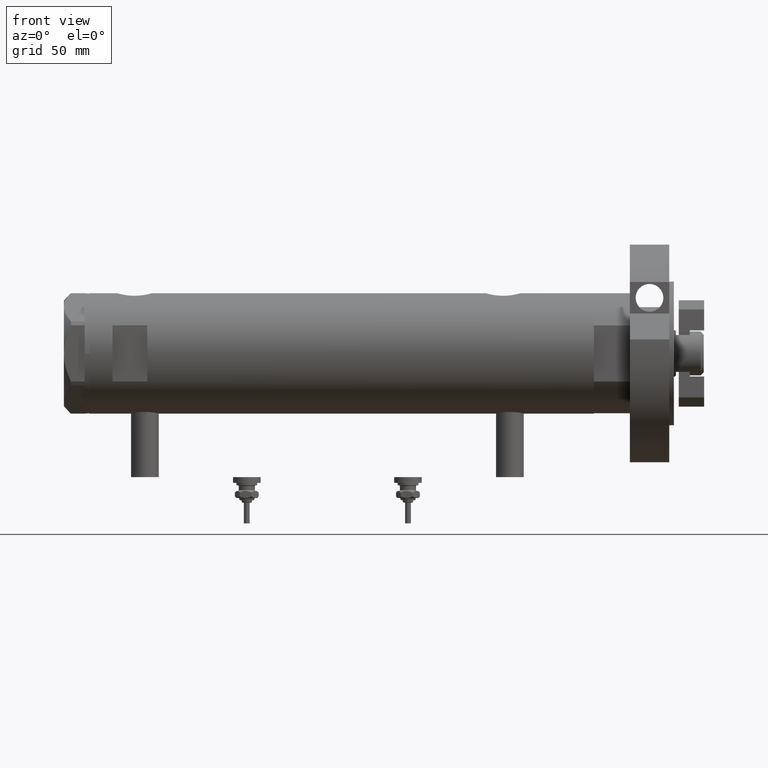
[diagram: clean part render]
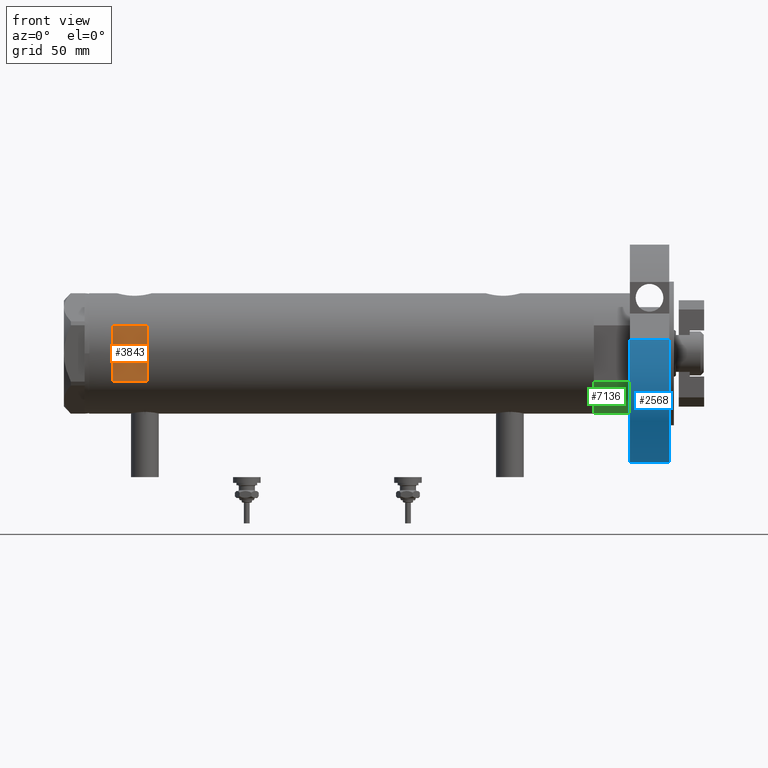
[diagram: same view with three faces highlighted in distinct colors, each labeled with its STEP entity id]
A machine part, front view with three faces highlighted in distinct colors.
Their STEP definitions:

[orange] entity #3843 — the highlighted planar face has unit normal (-0, 1, 0).
#249 = VERTEX_POINT ( 'NONE', #1616 ) ;
#256 = CARTESIAN_POINT ( 'NONE',  ( -26.00000000000000355, -23.00000000000000355, 98.95000000000001705 ) ) ;
#266 = ORIENTED_EDGE ( 'NONE', *, *, #1480, .T. ) ;
#517 = EDGE_LOOP ( 'NONE', ( #2859, #4172, #266, #6302 ) ) ;
#722 = AXIS2_PLACEMENT_3D ( 'NONE', #256, #5692, #1670 ) ;
#891 = VERTEX_POINT ( 'NONE', #8006 ) ;
#1367 = DIRECTION ( 'NONE',  ( 0.000000000000000000, 0.000000000000000000, 1.000000000000000000 ) ) ;
#1480 = EDGE_CURVE ( 'NONE', #891, #249, #7370, .T. ) ;
#1562 = EDGE_CURVE ( 'NONE', #1565, #249, #3850, .T. ) ;
#1565 = VERTEX_POINT ( 'NONE', #5816 ) ;
#1616 = CARTESIAN_POINT ( 'NONE',  ( 12.12435565298214080, -23.00000000000000355, 98.95000000000001705 ) ) ;
#1627 = FACE_OUTER_BOUND ( 'NONE', #517, .T. ) ;
#1670 = DIRECTION ( 'NONE',  ( 0.000000000000000000, -0.000000000000000000, 1.000000000000000000 ) ) ;
#1681 = VECTOR ( 'NONE', #6426, 1000.000000000000000 ) ;
#1753 = CARTESIAN_POINT ( 'NONE',  ( -26.00000000000000355, -23.00000000000000355, 98.95000000000001705 ) ) ;
#1825 = VECTOR ( 'NONE', #1367, 1000.000000000000000 ) ;
#2263 = VECTOR ( 'NONE', #3401, 1000.000000000000000 ) ;
#2277 = PLANE ( 'NONE',  #722 ) ;
#2859 = ORIENTED_EDGE ( 'NONE', *, *, #4123, .T. ) ;
#3401 = DIRECTION ( 'NONE',  ( -0.000000000000000000, -0.000000000000000000, -1.000000000000000000 ) ) ;
#3843 = ADVANCED_FACE ( 'NONE', ( #1627 ), #2277, .F. ) ;
#3850 = LINE ( 'NONE', #1753, #1681 ) ;
#4123 = EDGE_CURVE ( 'NONE', #1565, #5991, #6645, .T. ) ;
#4172 = ORIENTED_EDGE ( 'NONE', *, *, #7360, .T. ) ;
#4452 = CARTESIAN_POINT ( 'NONE',  ( -12.12435565298214080, -23.00000000000000355, 83.95000000000001705 ) ) ;
#4579 = LINE ( 'NONE', #5805, #8327 ) ;
#5692 = DIRECTION ( 'NONE',  ( 0.000000000000000000, 1.000000000000000000, 0.000000000000000000 ) ) ;
#5805 = CARTESIAN_POINT ( 'NONE',  ( -26.00000000000000355, -23.00000000000000355, 83.95000000000003126 ) ) ;
#5816 = CARTESIAN_POINT ( 'NONE',  ( -12.12435565298214080, -23.00000000000000355, 98.95000000000001705 ) ) ;
#5991 = VERTEX_POINT ( 'NONE', #4452 ) ;
#6302 = ORIENTED_EDGE ( 'NONE', *, *, #1562, .F. ) ;
#6426 = DIRECTION ( 'NONE',  ( 1.000000000000000000, -0.000000000000000000, -0.000000000000000000 ) ) ;
#6645 = LINE ( 'NONE', #8028, #2263 ) ;
#7213 = DIRECTION ( 'NONE',  ( 1.000000000000000000, -0.000000000000000000, -0.000000000000000000 ) ) ;
#7360 = EDGE_CURVE ( 'NONE', #5991, #891, #4579, .T. ) ;
#7370 = LINE ( 'NONE', #8338, #1825 ) ;
#8006 = CARTESIAN_POINT ( 'NONE',  ( 12.12435565298214080, -23.00000000000000355, 83.95000000000001705 ) ) ;
#8028 = CARTESIAN_POINT ( 'NONE',  ( -12.12435565298214080, -23.00000000000000355, -108.9500000000000028 ) ) ;
#8327 = VECTOR ( 'NONE', #7213, 1000.000000000000000 ) ;
#8338 = CARTESIAN_POINT ( 'NONE',  ( 12.12435565298214080, -23.00000000000000355, -108.9500000000000028 ) ) ;

[blue] entity #2568 — the highlighted cylindrical surface (partial cylindrical patch) has radius 47 mm, axis along (-1, -0, 0).
#446 = CIRCLE ( 'NONE', #8021, 46.99999999999999289 ) ;
#587 = DIRECTION ( 'NONE',  ( -0.000000000000000000, -0.000000000000000000, -1.000000000000000000 ) ) ;
#593 = CIRCLE ( 'NONE', #6882, 46.99999999999999289 ) ;
#657 = EDGE_CURVE ( 'NONE', #2670, #7834, #8198, .T. ) ;
#927 = CARTESIAN_POINT ( 'NONE',  ( -46.99999999999999289, 0.000000000000000000, 0.000000000000000000 ) ) ;
#1290 = LINE ( 'NONE', #1336, #5878 ) ;
#1336 = CARTESIAN_POINT ( 'NONE',  ( -46.99999999999999289, 0.000000000000000000, 17.00000000000000000 ) ) ;
#1545 = AXIS2_PLACEMENT_3D ( 'NONE', #6621, #587, #7287 ) ;
#1911 = FACE_OUTER_BOUND ( 'NONE', #8467, .T. ) ;
#2121 = DIRECTION ( 'NONE',  ( -0.000000000000000000, -0.000000000000000000, 1.000000000000000000 ) ) ;
#2220 = EDGE_CURVE ( 'NONE', #6772, #6833, #1290, .T. ) ;
#2568 = ADVANCED_FACE ( 'NONE', ( #1911 ), #2597, .T. ) ;
#2583 = DIRECTION ( 'NONE',  ( 0.000000000000000000, 0.000000000000000000, 1.000000000000000000 ) ) ;
#2597 = CYLINDRICAL_SURFACE ( 'NONE', #1545, 46.99999999999999289 ) ;
#2661 = DIRECTION ( 'NONE',  ( 0.000000000000000000, 0.000000000000000000, 1.000000000000000000 ) ) ;
#2668 = ORIENTED_EDGE ( 'NONE', *, *, #4049, .F. ) ;
#2670 = VERTEX_POINT ( 'NONE', #6498 ) ;
#3126 = ORIENTED_EDGE ( 'NONE', *, *, #4148, .T. ) ;
#3321 = CARTESIAN_POINT ( 'NONE',  ( 0.000000000000000000, 0.000000000000000000, 0.000000000000000000 ) ) ;
#3390 = CARTESIAN_POINT ( 'NONE',  ( 6.092310621118299352, 46.60347359688769586, 0.000000000000000000 ) ) ;
#4049 = EDGE_CURVE ( 'NONE', #7834, #6772, #593, .T. ) ;
#4148 = EDGE_CURVE ( 'NONE', #2670, #6833, #446, .T. ) ;
#4676 = DIRECTION ( 'NONE',  ( 1.000000000000000000, 0.000000000000000000, 0.000000000000000000 ) ) ;
#5597 = CARTESIAN_POINT ( 'NONE',  ( -46.99999999999999289, 0.000000000000000000, 17.00000000000000000 ) ) ;
#5878 = VECTOR ( 'NONE', #7339, 1000.000000000000000 ) ;
#6491 = CARTESIAN_POINT ( 'NONE',  ( 6.092310621118299352, 46.60347359688769586, 17.00000000000000000 ) ) ;
#6498 = CARTESIAN_POINT ( 'NONE',  ( 6.092310621118299352, 46.60347359688769586, 0.000000000000000000 ) ) ;
#6621 = CARTESIAN_POINT ( 'NONE',  ( 0.000000000000000000, 0.000000000000000000, 17.00000000000000000 ) ) ;
#6772 = VERTEX_POINT ( 'NONE', #5597 ) ;
#6784 = ORIENTED_EDGE ( 'NONE', *, *, #2220, .F. ) ;
#6833 = VERTEX_POINT ( 'NONE', #927 ) ;
#6882 = AXIS2_PLACEMENT_3D ( 'NONE', #8559, #2583, #7771 ) ;
#6972 = ORIENTED_EDGE ( 'NONE', *, *, #657, .F. ) ;
#7287 = DIRECTION ( 'NONE',  ( -1.000000000000000000, 0.000000000000000000, 0.000000000000000000 ) ) ;
#7339 = DIRECTION ( 'NONE',  ( -0.000000000000000000, -0.000000000000000000, -1.000000000000000000 ) ) ;
#7771 = DIRECTION ( 'NONE',  ( 1.000000000000000000, 0.000000000000000000, 0.000000000000000000 ) ) ;
#7834 = VERTEX_POINT ( 'NONE', #6491 ) ;
#8021 = AXIS2_PLACEMENT_3D ( 'NONE', #3321, #2661, #4676 ) ;
#8091 = VECTOR ( 'NONE', #2121, 1000.000000000000000 ) ;
#8198 = LINE ( 'NONE', #3390, #8091 ) ;
#8467 = EDGE_LOOP ( 'NONE', ( #6784, #2668, #6972, #3126 ) ) ;
#8559 = CARTESIAN_POINT ( 'NONE',  ( 0.000000000000000000, 0.000000000000000000, 17.00000000000000000 ) ) ;

[green] entity #7136 — the highlighted cylindrical surface (partial cylindrical patch) has radius 26 mm, axis along (-1, -0, 0).
#99 = DIRECTION ( 'NONE',  ( -1.000000000000000000, 0.000000000000000000, 0.000000000000000000 ) ) ;
#602 = VECTOR ( 'NONE', #4128, 1000.000000000000000 ) ;
#639 = CARTESIAN_POINT ( 'NONE',  ( 0.000000000000000000, 0.000000000000000000, 15.50000000000000000 ) ) ;
#696 = CARTESIAN_POINT ( 'NONE',  ( 0.000000000000000000, 0.000000000000000000, 15.50000000000000000 ) ) ;
#772 = DIRECTION ( 'NONE',  ( 0.000000000000000000, 0.000000000000000000, 1.000000000000000000 ) ) ;
#854 = LINE ( 'NONE', #4868, #602 ) ;
#1044 = AXIS2_PLACEMENT_3D ( 'NONE', #696, #3312, #99 ) ;
#1321 = VERTEX_POINT ( 'NONE', #1909 ) ;
#1515 = ORIENTED_EDGE ( 'NONE', *, *, #2291, .F. ) ;
#1868 = VECTOR ( 'NONE', #8657, 1000.000000000000000 ) ;
#1877 = DIRECTION ( 'NONE',  ( 0.000000000000000000, 0.000000000000000000, 1.000000000000000000 ) ) ;
#1909 = CARTESIAN_POINT ( 'NONE',  ( 12.12435565298215323, -22.99999999999999645, 0.000000000000000000 ) ) ;
#2024 = ORIENTED_EDGE ( 'NONE', *, *, #4837, .T. ) ;
#2291 = EDGE_CURVE ( 'NONE', #3260, #5117, #5171, .T. ) ;
#2430 = CIRCLE ( 'NONE', #7338, 26.00000000000000355 ) ;
#3033 = CARTESIAN_POINT ( 'NONE',  ( 12.12435565298215323, -22.99999999999999645, 15.50000000000000000 ) ) ;
#3252 = LINE ( 'NONE', #5837, #1868 ) ;
#3259 = EDGE_LOOP ( 'NONE', ( #1515, #6290, #3713, #2024 ) ) ;
#3260 = VERTEX_POINT ( 'NONE', #3033 ) ;
#3312 = DIRECTION ( 'NONE',  ( -0.000000000000000000, -0.000000000000000000, -1.000000000000000000 ) ) ;
#3440 = CYLINDRICAL_SURFACE ( 'NONE', #1044, 26.00000000000000355 ) ;
#3713 = ORIENTED_EDGE ( 'NONE', *, *, #8038, .T. ) ;
#3816 = CARTESIAN_POINT ( 'NONE',  ( 12.12435565298214790, 23.00000000000000355, 15.50000000000000000 ) ) ;
#3927 = AXIS2_PLACEMENT_3D ( 'NONE', #639, #772, #7418 ) ;
#4128 = DIRECTION ( 'NONE',  ( -0.000000000000000000, -0.000000000000000000, 1.000000000000000000 ) ) ;
#4146 = FACE_OUTER_BOUND ( 'NONE', #3259, .T. ) ;
#4510 = EDGE_CURVE ( 'NONE', #1321, #3260, #854, .T. ) ;
#4701 = DIRECTION ( 'NONE',  ( 1.000000000000000000, 0.000000000000000000, 0.000000000000000000 ) ) ;
#4837 = EDGE_CURVE ( 'NONE', #8430, #5117, #3252, .T. ) ;
#4868 = CARTESIAN_POINT ( 'NONE',  ( 12.12435565298215323, -22.99999999999999645, 0.000000000000000000 ) ) ;
#5117 = VERTEX_POINT ( 'NONE', #3816 ) ;
#5171 = CIRCLE ( 'NONE', #3927, 26.00000000000000355 ) ;
#5266 = CARTESIAN_POINT ( 'NONE',  ( 12.12435565298214080, 23.00000000000000355, 0.000000000000000000 ) ) ;
#5837 = CARTESIAN_POINT ( 'NONE',  ( 12.12435565298215323, 23.00000000000000355, 0.000000000000000000 ) ) ;
#6290 = ORIENTED_EDGE ( 'NONE', *, *, #4510, .F. ) ;
#7136 = ADVANCED_FACE ( 'NONE', ( #4146 ), #3440, .T. ) ;
#7256 = CARTESIAN_POINT ( 'NONE',  ( 0.000000000000000000, 0.000000000000000000, 0.000000000000000000 ) ) ;
#7338 = AXIS2_PLACEMENT_3D ( 'NONE', #7256, #1877, #4701 ) ;
#7418 = DIRECTION ( 'NONE',  ( 1.000000000000000000, 0.000000000000000000, 0.000000000000000000 ) ) ;
#8038 = EDGE_CURVE ( 'NONE', #1321, #8430, #2430, .T. ) ;
#8430 = VERTEX_POINT ( 'NONE', #5266 ) ;
#8657 = DIRECTION ( 'NONE',  ( -0.000000000000000000, -0.000000000000000000, 1.000000000000000000 ) ) ;